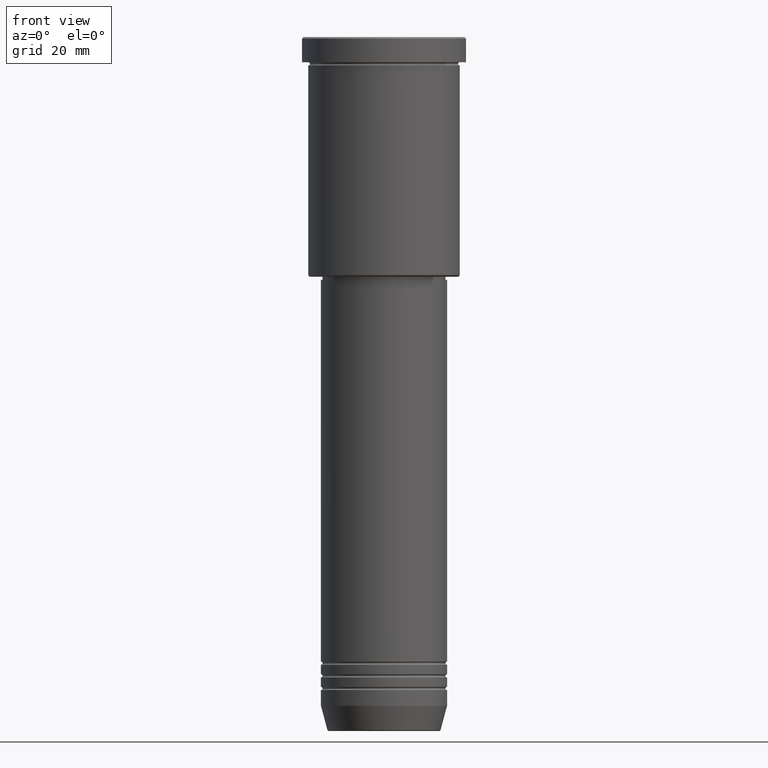
[diagram: clean part render]
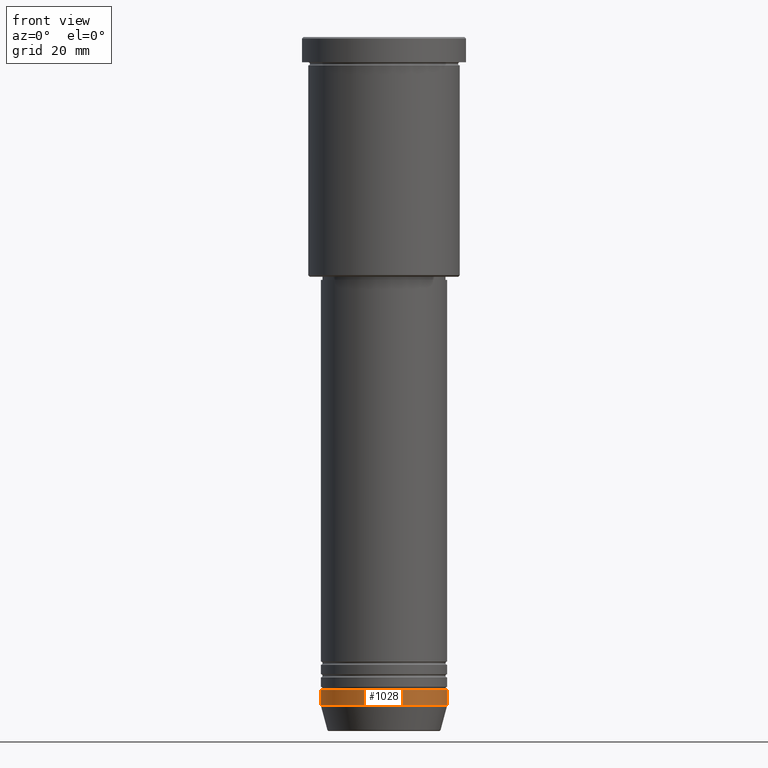
[diagram: same view with one face highlighted and labeled with its STEP entity id]
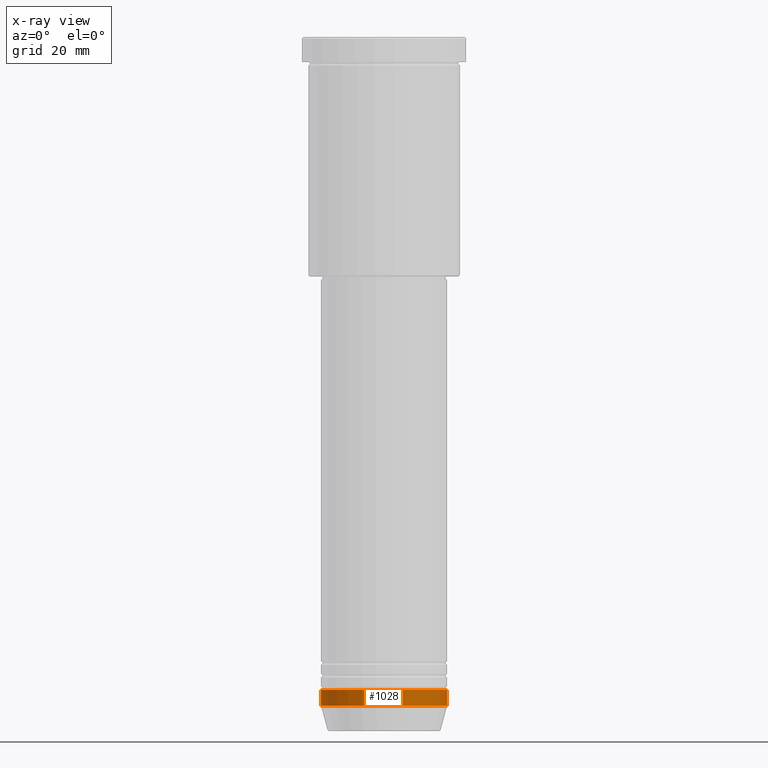
[diagram: x-ray of the same camera — body ghosted, the highlighted face saturated]
A machine part, front view. The second image highlights one B-rep face of the part: STEP entity #1028.
The next image is the same camera in x-ray: the body ghosted, the highlighted face saturated — about 0% of this face is hidden behind the body in this view.
In plain terms, the highlighted cylindrical surface (partial cylindrical patch) has radius 20 mm, axis along (-0, -0, 1).
Its self-contained STEP definition (entity closure, byte-faithful):
#36 = CARTESIAN_POINT ( 'NONE',  ( 20.00000000000000355, 0.000000000000000000, 0.000000000000000000 ) ) ;
#56 = CIRCLE ( 'NONE', #810, 20.00000000000000355 ) ;
#64 = CARTESIAN_POINT ( 'NONE',  ( -20.00000000000000000, 2.449293598294706513E-15, -207.0000000000000000 ) ) ;
#78 = LINE ( 'NONE', #452, #1061 ) ;
#100 = DIRECTION ( 'NONE',  ( 1.000000000000000000, 0.000000000000000000, 0.000000000000000000 ) ) ;
#153 = ORIENTED_EDGE ( 'NONE', *, *, #375, .F. ) ;
#179 = ORIENTED_EDGE ( 'NONE', *, *, #210, .T. ) ;
#184 = CARTESIAN_POINT ( 'NONE',  ( 20.00000000000000000, 0.000000000000000000, -207.0000000000000000 ) ) ;
#198 = DIRECTION ( 'NONE',  ( -0.000000000000000000, -0.000000000000000000, 1.000000000000000000 ) ) ;
#210 = EDGE_CURVE ( 'NONE', #1155, #939, #587, .T. ) ;
#229 = CARTESIAN_POINT ( 'NONE',  ( 0.000000000000000000, 0.000000000000000000, -207.0000000000000000 ) ) ;
#236 = DIRECTION ( 'NONE',  ( 1.000000000000000000, 0.000000000000000000, 0.000000000000000000 ) ) ;
#251 = ORIENTED_EDGE ( 'NONE', *, *, #797, .F. ) ;
#306 = VERTEX_POINT ( 'NONE', #1068 ) ;
#316 = DIRECTION ( 'NONE',  ( -0.000000000000000000, -0.000000000000000000, 1.000000000000000000 ) ) ;
#352 = VERTEX_POINT ( 'NONE', #64 ) ;
#375 = EDGE_CURVE ( 'NONE', #306, #352, #78, .T. ) ;
#434 = CARTESIAN_POINT ( 'NONE',  ( 0.000000000000000000, 0.000000000000000000, -212.0000000000000000 ) ) ;
#452 = CARTESIAN_POINT ( 'NONE',  ( -20.00000000000000355, 2.449293598294706907E-15, 0.000000000000000000 ) ) ;
#518 = ORIENTED_EDGE ( 'NONE', *, *, #526, .T. ) ;
#526 = EDGE_CURVE ( 'NONE', #306, #1155, #56, .T. ) ;
#537 = DIRECTION ( 'NONE',  ( -0.000000000000000000, -0.000000000000000000, 1.000000000000000000 ) ) ;
#540 = CARTESIAN_POINT ( 'NONE',  ( 20.00000000000000355, 0.000000000000000000, -212.0000000000000000 ) ) ;
#566 = CYLINDRICAL_SURFACE ( 'NONE', #1119, 20.00000000000000355 ) ;
#587 = LINE ( 'NONE', #36, #704 ) ;
#704 = VECTOR ( 'NONE', #1036, 1000.000000000000000 ) ;
#797 = EDGE_CURVE ( 'NONE', #352, #939, #898, .T. ) ;
#803 = DIRECTION ( 'NONE',  ( 1.000000000000000000, 0.000000000000000000, 0.000000000000000000 ) ) ;
#810 = AXIS2_PLACEMENT_3D ( 'NONE', #434, #198, #803 ) ;
#824 = EDGE_LOOP ( 'NONE', ( #153, #518, #179, #251 ) ) ;
#898 = CIRCLE ( 'NONE', #1101, 20.00000000000000000 ) ;
#930 = DIRECTION ( 'NONE',  ( -0.000000000000000000, -0.000000000000000000, 1.000000000000000000 ) ) ;
#936 = CARTESIAN_POINT ( 'NONE',  ( 0.000000000000000000, 0.000000000000000000, 0.000000000000000000 ) ) ;
#939 = VERTEX_POINT ( 'NONE', #184 ) ;
#1028 = ADVANCED_FACE ( 'NONE', ( #1102 ), #566, .T. ) ;
#1036 = DIRECTION ( 'NONE',  ( -0.000000000000000000, -0.000000000000000000, 1.000000000000000000 ) ) ;
#1061 = VECTOR ( 'NONE', #930, 1000.000000000000000 ) ;
#1068 = CARTESIAN_POINT ( 'NONE',  ( -20.00000000000000355, 2.449293598294706907E-15, -212.0000000000000000 ) ) ;
#1101 = AXIS2_PLACEMENT_3D ( 'NONE', #229, #316, #236 ) ;
#1102 = FACE_OUTER_BOUND ( 'NONE', #824, .T. ) ;
#1119 = AXIS2_PLACEMENT_3D ( 'NONE', #936, #537, #100 ) ;
#1155 = VERTEX_POINT ( 'NONE', #540 ) ;